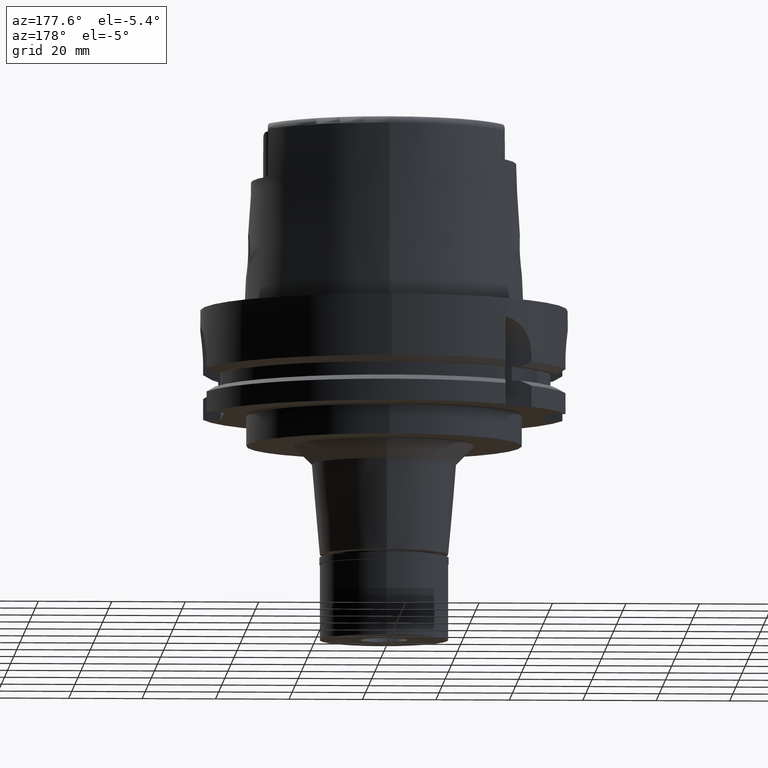
[diagram: clean part render]
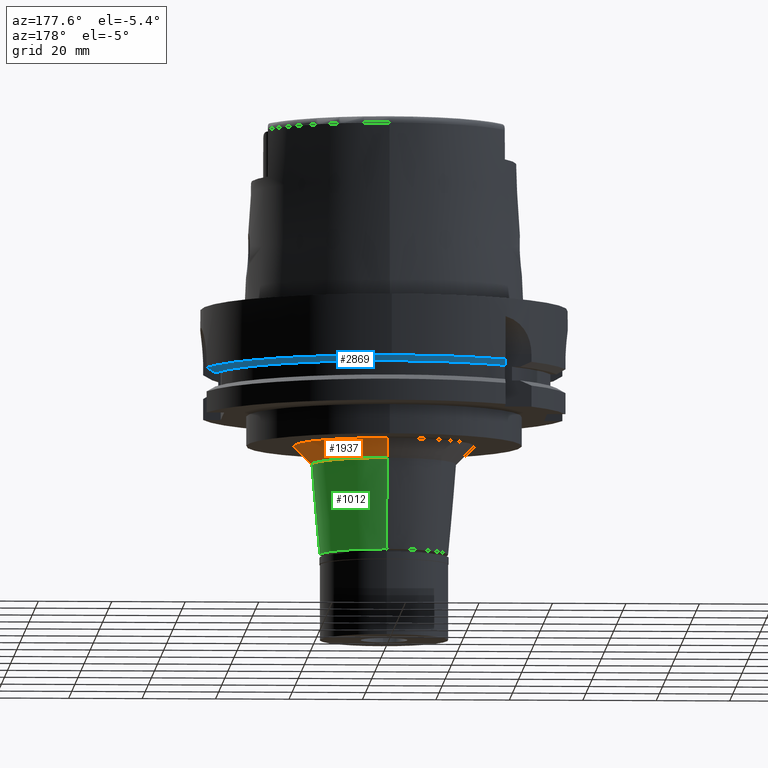
[diagram: same view with three faces highlighted in distinct colors, each labeled with its STEP entity id]
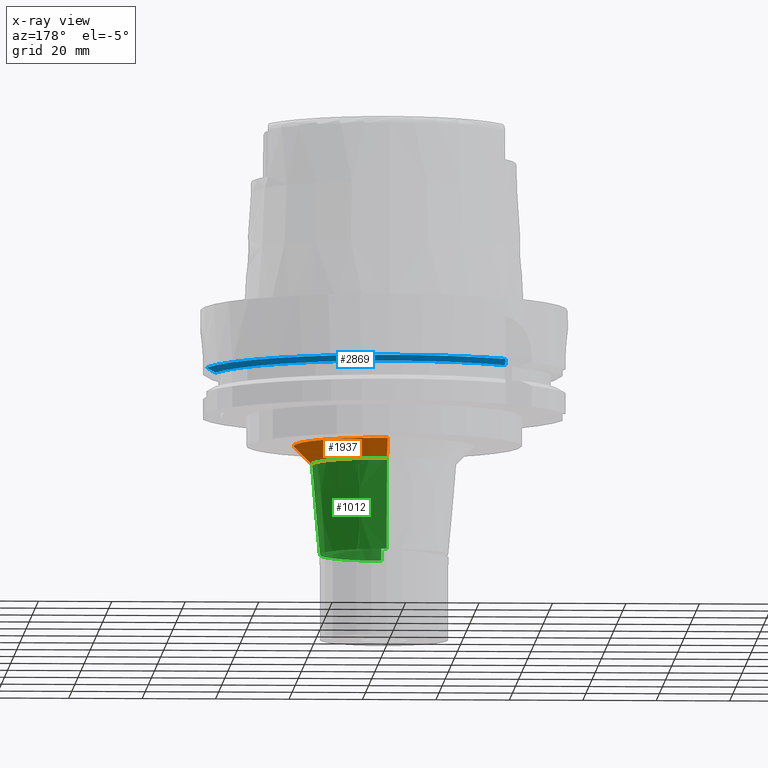
[diagram: x-ray of the same camera — body ghosted, the three highlighted faces saturated]
A machine part, auxiliary view with three faces highlighted in distinct colors.
The next image is the same camera in x-ray (body ghosted, the three faces saturated) — at least one of them is partly hidden behind the body in this view.
Their STEP definitions:

[orange] entity #1937 — the highlighted conical surface has half-angle 45 deg.
#34 = CARTESIAN_POINT ( 'NONE',  ( 0.0000000000000000000, 0.0000000000000000000, -37.00000000000000000 ) ) ;
#111 = CARTESIAN_POINT ( 'NONE',  ( 0.0000000000000000000, 0.0000000000000000000, -39.50000000000000000 ) ) ;
#273 = CIRCLE ( 'NONE', #716, 24.66096998908999893 ) ;
#294 = DIRECTION ( 'NONE',  ( 0.0000000000000000000, 0.7071067811863974706, -0.7071067811866975639 ) ) ;
#361 = CARTESIAN_POINT ( 'NONE',  ( 0.0000000000000000000, 24.66096998908999893, -37.00000000000000000 ) ) ;
#526 = ORIENTED_EDGE ( 'NONE', *, *, #1069, .T. ) ;
#565 = CARTESIAN_POINT ( 'NONE',  ( 0.0000000000000000000, -24.66096998908999893, -37.00000000000000000 ) ) ;
#570 = DIRECTION ( 'NONE',  ( 0.0000000000000000000, -1.000000000000000000, 0.0000000000000000000 ) ) ;
#716 = AXIS2_PLACEMENT_3D ( 'NONE', #34, #5591, #5559 ) ;
#942 = CIRCLE ( 'NONE', #3477, 19.66096998909999982 ) ;
#1060 = FACE_OUTER_BOUND ( 'NONE', #3399, .T. ) ;
#1069 = EDGE_CURVE ( 'NONE', #3964, #5154, #942, .T. ) ;
#1321 = VECTOR ( 'NONE', #294, 1000.000000000000114 ) ;
#1831 = EDGE_CURVE ( 'NONE', #4039, #5154, #2731, .T. ) ;
#1841 = CARTESIAN_POINT ( 'NONE',  ( 0.0000000000000000000, 0.0000000000000000000, -42.00000000000000000 ) ) ;
#1937 = ADVANCED_FACE ( 'NONE', ( #1060 ), #4948, .T. ) ;
#2465 = CARTESIAN_POINT ( 'NONE',  ( 0.0000000000000000000, -24.66096998908999893, -37.00000000000000000 ) ) ;
#2731 = LINE ( 'NONE', #3192, #3952 ) ;
#2754 = DIRECTION ( 'NONE',  ( 0.0000000000000000000, 0.0000000000000000000, 1.000000000000000000 ) ) ;
#3006 = ORIENTED_EDGE ( 'NONE', *, *, #5376, .T. ) ;
#3192 = CARTESIAN_POINT ( 'NONE',  ( 0.0000000000000000000, 24.66096998908999893, -37.00000000000000000 ) ) ;
#3207 = DIRECTION ( 'NONE',  ( 0.0000000000000000000, 0.0000000000000000000, 1.000000000000000000 ) ) ;
#3399 = EDGE_LOOP ( 'NONE', ( #5608, #3006, #526, #4480 ) ) ;
#3412 = LINE ( 'NONE', #2465, #1321 ) ;
#3470 = CARTESIAN_POINT ( 'NONE',  ( 0.0000000000000000000, 19.66096998909000249, -42.00000000000000000 ) ) ;
#3477 = AXIS2_PLACEMENT_3D ( 'NONE', #1841, #3207, #570 ) ;
#3640 = DIRECTION ( 'NONE',  ( 0.0000000000000000000, -0.7071067811863974706, -0.7071067811866975639 ) ) ;
#3641 = VERTEX_POINT ( 'NONE', #565 ) ;
#3952 = VECTOR ( 'NONE', #3640, 1000.000000000000114 ) ;
#3964 = VERTEX_POINT ( 'NONE', #5058 ) ;
#4039 = VERTEX_POINT ( 'NONE', #361 ) ;
#4059 = EDGE_CURVE ( 'NONE', #4039, #3641, #273, .T. ) ;
#4480 = ORIENTED_EDGE ( 'NONE', *, *, #1831, .F. ) ;
#4948 = CONICAL_SURFACE ( 'NONE', #5561, 22.16096998908999893, 0.7853981633972997312 ) ;
#5058 = CARTESIAN_POINT ( 'NONE',  ( 0.0000000000000000000, -19.66096998909000249, -42.00000000000000000 ) ) ;
#5154 = VERTEX_POINT ( 'NONE', #3470 ) ;
#5297 = DIRECTION ( 'NONE',  ( 0.0000000000000000000, 1.000000000000000000, 0.0000000000000000000 ) ) ;
#5376 = EDGE_CURVE ( 'NONE', #3641, #3964, #3412, .T. ) ;
#5559 = DIRECTION ( 'NONE',  ( 0.0000000000000000000, 1.000000000000000000, 0.0000000000000000000 ) ) ;
#5561 = AXIS2_PLACEMENT_3D ( 'NONE', #111, #2754, #5297 ) ;
#5591 = DIRECTION ( 'NONE',  ( 0.0000000000000000000, 0.0000000000000000000, -1.000000000000000000 ) ) ;
#5608 = ORIENTED_EDGE ( 'NONE', *, *, #4059, .T. ) ;

[blue] entity #2869 — the highlighted conical surface has half-angle 60 deg.
#19 = EDGE_CURVE ( 'NONE', #4738, #2414, #5395, .T. ) ;
#38 = CARTESIAN_POINT ( 'NONE',  ( 1.065814103639999922E-14, 50.00000000000000000, -16.75240473580999989 ) ) ;
#119 = CARTESIAN_POINT ( 'NONE',  ( 0.0000000000000000000, 0.0000000000000000000, -16.75240473580999989 ) ) ;
#340 = CARTESIAN_POINT ( 'NONE',  ( -31.50000097280999967, 35.71639618471999711, -18.12500000000000000 ) ) ;
#423 = DIRECTION ( 'NONE',  ( 0.9754998718605770724, 0.2199999999999950051, 0.0000000000000000000 ) ) ;
#439 = CARTESIAN_POINT ( 'NONE',  ( 46.60605711264999940, 11.00000000000000000, -17.97261191788999923 ) ) ;
#624 = EDGE_LOOP ( 'NONE', ( #1719, #3817, #3966, #1740, #2772 ) ) ;
#864 = FACE_OUTER_BOUND ( 'NONE', #624, .T. ) ;
#1199 = CARTESIAN_POINT ( 'NONE',  ( 0.0000000000000000000, 0.0000000000000000000, -17.43870236789999950 ) ) ;
#1309 = CARTESIAN_POINT ( 'NONE',  ( 48.77499359303000404, 11.00000000000000000, -16.75240473580999989 ) ) ;
#1616 = CARTESIAN_POINT ( 'NONE',  ( -31.50000711004718212, 37.77100375014965294, -17.22711240004090172 ) ) ;
#1619 = CIRCLE ( 'NONE', #2617, 50.00000000000000000 ) ;
#1719 = ORIENTED_EDGE ( 'NONE', *, *, #2987, .F. ) ;
#1740 = ORIENTED_EDGE ( 'NONE', *, *, #2776, .T. ) ;
#2414 = VERTEX_POINT ( 'NONE', #2978 ) ;
#2420 = CARTESIAN_POINT ( 'NONE',  ( 46.33477721644000269, 11.00000000000000000, -18.12500000000000000 ) ) ;
#2524 = CIRCLE ( 'NONE', #2709, 50.00000000000000711 ) ;
#2561 = B_SPLINE_CURVE_WITH_KNOTS ( 'NONE', 3,
 ( #3779, #439, #3903, #5644, #5214, #1309 ),
 .UNSPECIFIED., .F., .F.,
 ( 4, 1, 1, 4 ),
 ( 0.0000000000000000000, 0.3333333333333000081, 0.6666666666667000474, 1.000000000000000000 ),
 .UNSPECIFIED. ) ;
#2600 = DIRECTION ( 'NONE',  ( 0.0000000000000000000, 0.0000000000000000000, 1.000000000000000000 ) ) ;
#2612 = AXIS2_PLACEMENT_3D ( 'NONE', #2934, #2600, #3849 ) ;
#2617 = AXIS2_PLACEMENT_3D ( 'NONE', #119, #4917, #4511 ) ;
#2709 = AXIS2_PLACEMENT_3D ( 'NONE', #3394, #5256, #423 ) ;
#2772 = ORIENTED_EDGE ( 'NONE', *, *, #19, .T. ) ;
#2776 = EDGE_CURVE ( 'NONE', #4416, #4738, #3882, .T. ) ;
#2861 = CARTESIAN_POINT ( 'NONE',  ( -31.50000355958999876, 38.82975374304999860, -16.75239179145000179 ) ) ;
#2869 = ADVANCED_FACE ( 'NONE', ( #864 ), #3789, .T. ) ;
#2934 = CARTESIAN_POINT ( 'NONE',  ( 0.0000000000000000000, 0.0000000000000000000, -18.12500000000000000 ) ) ;
#2978 = CARTESIAN_POINT ( 'NONE',  ( -31.50000355958999876, 38.82975374304999860, -16.75239179145000179 ) ) ;
#2987 = EDGE_CURVE ( 'NONE', #3549, #2414, #1619, .T. ) ;
#3195 = EDGE_CURVE ( 'NONE', #4416, #4739, #2561, .T. ) ;
#3394 = CARTESIAN_POINT ( 'NONE',  ( 0.0000000000000000000, 0.0000000000000000000, -16.75240473580999989 ) ) ;
#3549 = VERTEX_POINT ( 'NONE', #38 ) ;
#3555 = EDGE_CURVE ( 'NONE', #4739, #3549, #2524, .T. ) ;
#3779 = CARTESIAN_POINT ( 'NONE',  ( 46.33477721644000269, 11.00000000000000000, -18.12500000000000000 ) ) ;
#3787 = DIRECTION ( 'NONE',  ( 0.0000000000000000000, 1.000000000000000000, 0.0000000000000000000 ) ) ;
#3789 = CONICAL_SURFACE ( 'NONE', #4621, 48.81129763208999606, 1.047197551196400456 ) ;
#3817 = ORIENTED_EDGE ( 'NONE', *, *, #3555, .F. ) ;
#3849 = DIRECTION ( 'NONE',  ( 0.9729578356532629924, 0.2309827916553914839, 0.0000000000000000000 ) ) ;
#3878 = DIRECTION ( 'NONE',  ( 0.0000000000000000000, 0.0000000000000000000, 1.000000000000000000 ) ) ;
#3882 = CIRCLE ( 'NONE', #2612, 47.62259526418999656 ) ;
#3903 = CARTESIAN_POINT ( 'NONE',  ( 47.14851446811000102, 11.00000000000000000, -17.66774350266999960 ) ) ;
#3966 = ORIENTED_EDGE ( 'NONE', *, *, #3195, .F. ) ;
#4202 = CARTESIAN_POINT ( 'NONE',  ( 48.77499359303000404, 11.00000000000000000, -16.75240473580999989 ) ) ;
#4416 = VERTEX_POINT ( 'NONE', #2420 ) ;
#4511 = DIRECTION ( 'NONE',  ( 0.0000000000000000000, 1.000000000000000000, 0.0000000000000000000 ) ) ;
#4621 = AXIS2_PLACEMENT_3D ( 'NONE', #1199, #3878, #3787 ) ;
#4738 = VERTEX_POINT ( 'NONE', #340 ) ;
#4739 = VERTEX_POINT ( 'NONE', #4202 ) ;
#4917 = DIRECTION ( 'NONE',  ( 0.0000000000000000000, 0.0000000000000000000, 1.000000000000000000 ) ) ;
#5214 = CARTESIAN_POINT ( 'NONE',  ( 48.50399904748000068, 11.00000000000000000, -16.90503024962000111 ) ) ;
#5256 = DIRECTION ( 'NONE',  ( 0.0000000000000000000, 0.0000000000000000000, 1.000000000000000000 ) ) ;
#5395 = B_SPLINE_CURVE_WITH_KNOTS ( 'NONE', 3,
 ( #5409, #5461, #1616, #2861 ),
 .UNSPECIFIED., .F., .F.,
 ( 4, 4 ),
 ( 0.0000000000000000000, 1.000000000000000000 ),
 .UNSPECIFIED. ) ;
#5409 = CARTESIAN_POINT ( 'NONE',  ( -31.50000097280999967, 35.71639618471999711, -18.12500000000000000 ) ) ;
#5461 = CARTESIAN_POINT ( 'NONE',  ( -31.50000195460757979, 36.73337253298934257, -17.68464608511978042 ) ) ;
#5644 = CARTESIAN_POINT ( 'NONE',  ( 47.96191616323000062, 11.00000000000000000, -17.21020456769999996 ) ) ;

[green] entity #1012 — the highlighted conical surface has half-angle 5 deg.
#20 = VERTEX_POINT ( 'NONE', #4615 ) ;
#169 = ORIENTED_EDGE ( 'NONE', *, *, #1069, .F. ) ;
#357 = LINE ( 'NONE', #1656, #4972 ) ;
#362 = LINE ( 'NONE', #4281, #767 ) ;
#570 = DIRECTION ( 'NONE',  ( 0.0000000000000000000, -1.000000000000000000, 0.0000000000000000000 ) ) ;
#767 = VECTOR ( 'NONE', #2062, 1000.000000000000000 ) ;
#852 = CONICAL_SURFACE ( 'NONE', #5480, 18.58048499454999813, 0.08726646259969973729 ) ;
#880 = DIRECTION ( 'NONE',  ( 0.0000000000000000000, 1.000000000000000000, 0.0000000000000000000 ) ) ;
#942 = CIRCLE ( 'NONE', #3477, 19.66096998909999982 ) ;
#1012 = ADVANCED_FACE ( 'NONE', ( #2520 ), #852, .T. ) ;
#1069 = EDGE_CURVE ( 'NONE', #3964, #5154, #942, .T. ) ;
#1305 = EDGE_LOOP ( 'NONE', ( #169, #4246, #1884, #1965 ) ) ;
#1652 = DIRECTION ( 'NONE',  ( 0.0000000000000000000, -1.000000000000000000, 0.0000000000000000000 ) ) ;
#1656 = CARTESIAN_POINT ( 'NONE',  ( 0.0000000000000000000, -19.66096998909000249, -42.00000000000000000 ) ) ;
#1709 = DIRECTION ( 'NONE',  ( 0.0000000000000000000, 0.0000000000000000000, 1.000000000000000000 ) ) ;
#1788 = EDGE_CURVE ( 'NONE', #5154, #2221, #362, .T. ) ;
#1841 = CARTESIAN_POINT ( 'NONE',  ( 0.0000000000000000000, 0.0000000000000000000, -42.00000000000000000 ) ) ;
#1884 = ORIENTED_EDGE ( 'NONE', *, *, #3228, .T. ) ;
#1888 = AXIS2_PLACEMENT_3D ( 'NONE', #2498, #5552, #1652 ) ;
#1965 = ORIENTED_EDGE ( 'NONE', *, *, #1788, .F. ) ;
#2062 = DIRECTION ( 'NONE',  ( 0.0000000000000000000, -0.08715574274762423468, -0.9961946980917484318 ) ) ;
#2143 = DIRECTION ( 'NONE',  ( 0.0000000000000000000, 0.08715574274762423468, -0.9961946980917484318 ) ) ;
#2221 = VERTEX_POINT ( 'NONE', #2433 ) ;
#2433 = CARTESIAN_POINT ( 'NONE',  ( 0.0000000000000000000, 17.50000000000000000, -66.69999999999998863 ) ) ;
#2498 = CARTESIAN_POINT ( 'NONE',  ( 0.0000000000000000000, 0.0000000000000000000, -66.69999999999998863 ) ) ;
#2520 = FACE_OUTER_BOUND ( 'NONE', #1305, .T. ) ;
#3207 = DIRECTION ( 'NONE',  ( 0.0000000000000000000, 0.0000000000000000000, 1.000000000000000000 ) ) ;
#3228 = EDGE_CURVE ( 'NONE', #20, #2221, #4905, .T. ) ;
#3470 = CARTESIAN_POINT ( 'NONE',  ( 0.0000000000000000000, 19.66096998909000249, -42.00000000000000000 ) ) ;
#3477 = AXIS2_PLACEMENT_3D ( 'NONE', #1841, #3207, #570 ) ;
#3964 = VERTEX_POINT ( 'NONE', #5058 ) ;
#4246 = ORIENTED_EDGE ( 'NONE', *, *, #5014, .T. ) ;
#4281 = CARTESIAN_POINT ( 'NONE',  ( 0.0000000000000000000, 19.66096998909000249, -42.00000000000000000 ) ) ;
#4615 = CARTESIAN_POINT ( 'NONE',  ( 0.0000000000000000000, -17.50000000000000000, -66.69999999999998863 ) ) ;
#4785 = CARTESIAN_POINT ( 'NONE',  ( 0.0000000000000000000, 0.0000000000000000000, -54.35000000000000142 ) ) ;
#4905 = CIRCLE ( 'NONE', #1888, 17.50000000000000000 ) ;
#4972 = VECTOR ( 'NONE', #2143, 1000.000000000000000 ) ;
#5014 = EDGE_CURVE ( 'NONE', #3964, #20, #357, .T. ) ;
#5058 = CARTESIAN_POINT ( 'NONE',  ( 0.0000000000000000000, -19.66096998909000249, -42.00000000000000000 ) ) ;
#5154 = VERTEX_POINT ( 'NONE', #3470 ) ;
#5480 = AXIS2_PLACEMENT_3D ( 'NONE', #4785, #1709, #880 ) ;
#5552 = DIRECTION ( 'NONE',  ( 0.0000000000000000000, 0.0000000000000000000, 1.000000000000000000 ) ) ;